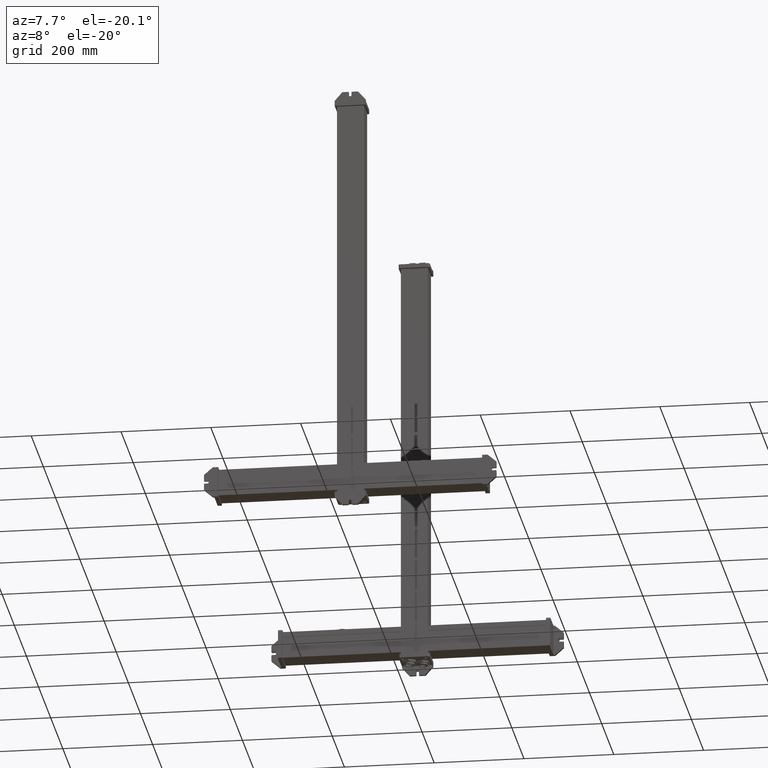
[diagram: clean part render]
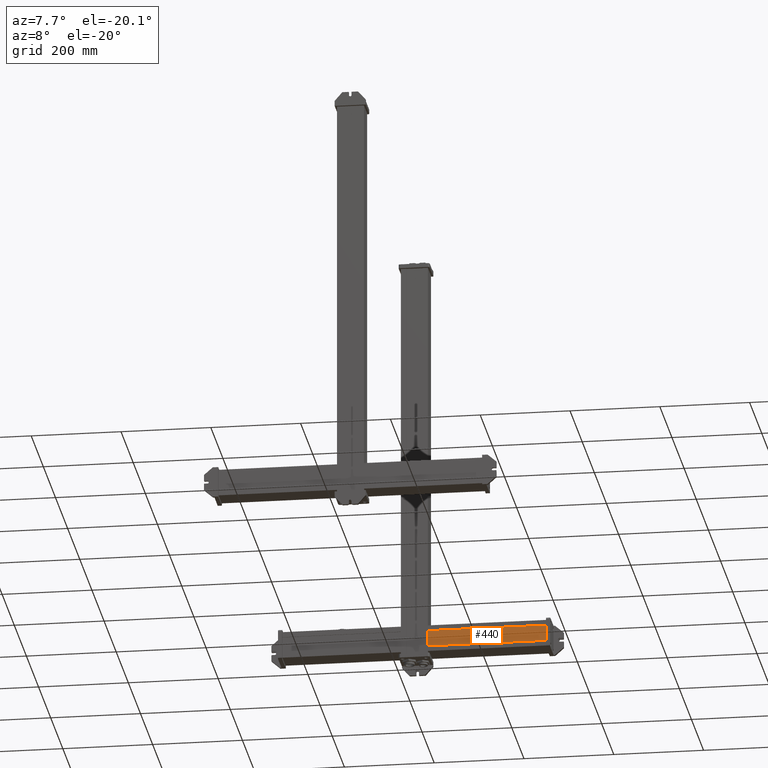
[diagram: same view with one face highlighted and labeled with its STEP entity id]
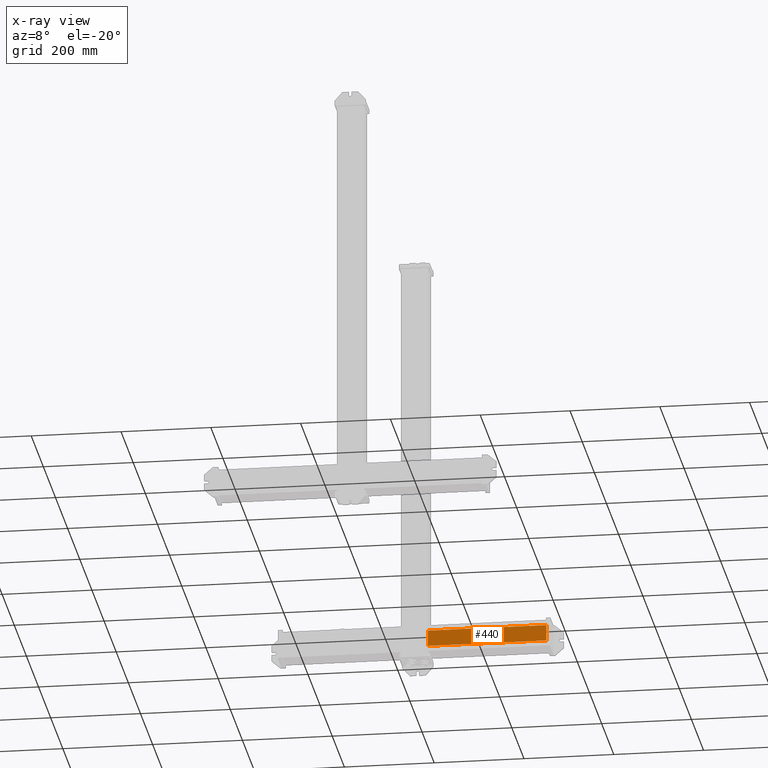
[diagram: x-ray of the same camera — body ghosted, the highlighted face saturated]
A machine part, auxiliary view. The second image highlights one B-rep face of the part: STEP entity #440.
The next image is the same camera in x-ray: the body ghosted, the highlighted face saturated — about 0% of this face is hidden behind the body in this view.
In plain terms, the highlighted planar face has unit normal (-0, -1, 0).
Its self-contained STEP definition (entity closure, byte-faithful):
#357=CARTESIAN_POINT('Vertex',(12.,51.,0.)) ;
#360=CARTESIAN_POINT('Line Origine',(30.,51.,0.)) ;
#364=CARTESIAN_POINT('Vertex',(48.,51.,0.)) ;
#397=CARTESIAN_POINT('Vertex',(12.,51.,264.)) ;
#400=CARTESIAN_POINT('Line Origine',(12.,51.,132.)) ;
#417=CARTESIAN_POINT('Axis2P3D Location',(48.,51.,0.)) ;
#422=CARTESIAN_POINT('Line Origine',(48.,51.,132.)) ;
#426=CARTESIAN_POINT('Vertex',(48.,51.,264.)) ;
#429=CARTESIAN_POINT('Line Origine',(30.,51.,264.)) ;
#361=DIRECTION('Vector Direction',(-1.,0.,0.)) ;
#401=DIRECTION('Vector Direction',(0.,0.,1.)) ;
#418=DIRECTION('Axis2P3D Direction',(0.,1.,-0.)) ;
#419=DIRECTION('Axis2P3D XDirection',(-1.,0.,0.)) ;
#423=DIRECTION('Vector Direction',(0.,0.,1.)) ;
#430=DIRECTION('Vector Direction',(-1.,0.,0.)) ;
#420=AXIS2_PLACEMENT_3D('Plane Axis2P3D',#417,#418,#419) ;
#435=ORIENTED_EDGE('',*,*,#428,.F.) ;
#436=ORIENTED_EDGE('',*,*,#366,.F.) ;
#437=ORIENTED_EDGE('',*,*,#404,.T.) ;
#438=ORIENTED_EDGE('',*,*,#433,.F.) ;
#362=VECTOR('Line Direction',#361,1.) ;
#402=VECTOR('Line Direction',#401,1.) ;
#424=VECTOR('Line Direction',#423,1.) ;
#431=VECTOR('Line Direction',#430,1.) ;
#440=ADVANCED_FACE('Body.2',(#439),#421,.T.) ;
#366=EDGE_CURVE('',#358,#365,#363,.F.) ;
#404=EDGE_CURVE('',#358,#398,#403,.T.) ;
#428=EDGE_CURVE('',#365,#427,#425,.T.) ;
#433=EDGE_CURVE('',#427,#398,#432,.T.) ;
#434=EDGE_LOOP('',(#435,#436,#437,#438)) ;
#439=FACE_OUTER_BOUND('',#434,.T.) ;
#363=LINE('Line',#360,#362) ;
#403=LINE('Line',#400,#402) ;
#425=LINE('Line',#422,#424) ;
#432=LINE('Line',#429,#431) ;
#421=PLANE('Plane',#420) ;
#358=VERTEX_POINT('',#357) ;
#365=VERTEX_POINT('',#364) ;
#398=VERTEX_POINT('',#397) ;
#427=VERTEX_POINT('',#426) ;